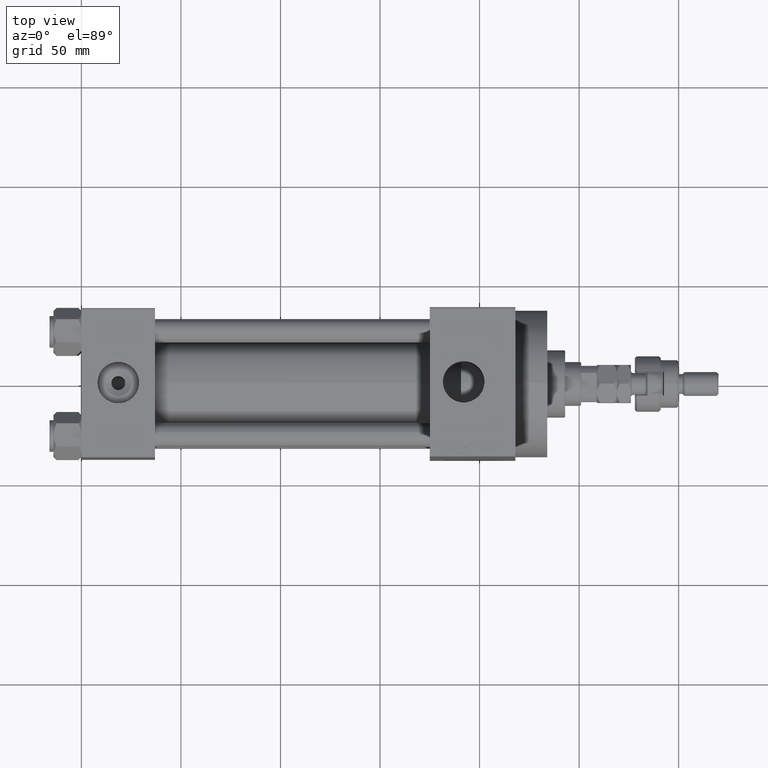
[diagram: clean part render]
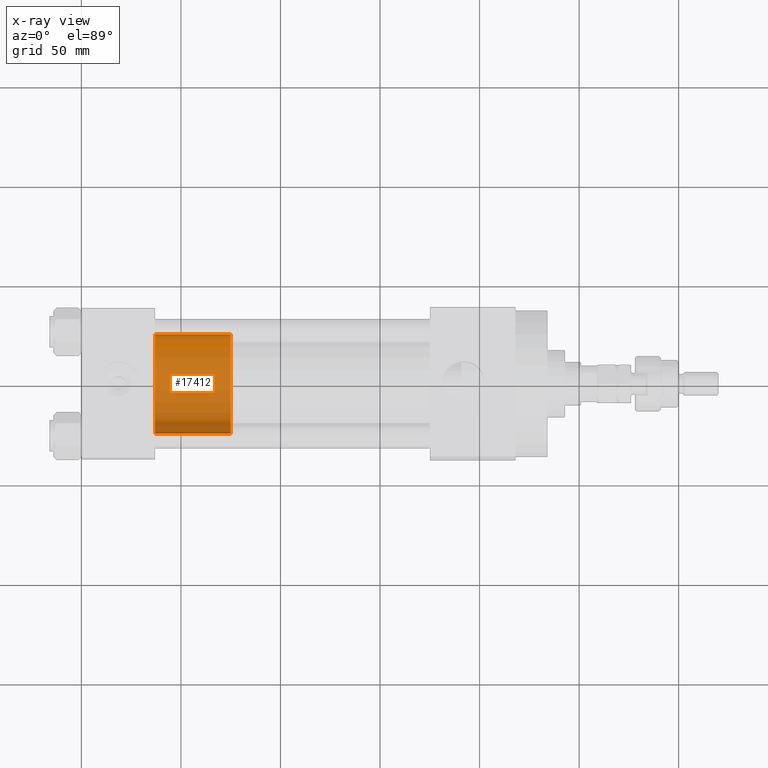
[diagram: x-ray — body ghosted, one internal face saturated and labeled with its STEP entity id]
A machine part, top view, then the same camera in x-ray: the body is ghosted and one INTERNAL B-rep face — a face not visible from any outside direction — is saturated and labeled: STEP entity #17412.
In plain terms, the highlighted cylindrical surface (partial cylindrical patch) has radius 25 mm, axis along (-1, 0, 0).
Its self-contained STEP definition (entity closure, byte-faithful):
#53 = AXIS2_PLACEMENT_3D ( 'NONE', #7747, #39234, #43512 ) ;
#1035 = CIRCLE ( 'NONE', #29429, 25.00000000000000000 ) ;
#1874 = EDGE_CURVE ( 'NONE', #42805, #6359, #1035, .T. ) ;
#2304 = ORIENTED_EDGE ( 'NONE', *, *, #1874, .F. ) ;
#2607 = CARTESIAN_POINT ( 'NONE',  ( 25.00000000000000000, 3.061616997868383043E-15, 38.00000000000000000 ) ) ;
#6182 = CARTESIAN_POINT ( 'NONE',  ( 0.000000000000000000, 0.000000000000000000, 0.000000000000000000 ) ) ;
#6359 = VERTEX_POINT ( 'NONE', #18870 ) ;
#6688 = ORIENTED_EDGE ( 'NONE', *, *, #36668, .T. ) ;
#7121 = VERTEX_POINT ( 'NONE', #26381 ) ;
#7747 = CARTESIAN_POINT ( 'NONE',  ( 0.000000000000000000, 0.000000000000000000, 38.00000000000000000 ) ) ;
#8326 = LINE ( 'NONE', #35498, #21020 ) ;
#9874 = DIRECTION ( 'NONE',  ( -0.000000000000000000, -0.000000000000000000, -1.000000000000000000 ) ) ;
#12556 = FACE_OUTER_BOUND ( 'NONE', #49221, .T. ) ;
#13918 = CARTESIAN_POINT ( 'NONE',  ( -25.00000000000000000, 0.000000000000000000, 0.000000000000000000 ) ) ;
#17412 = ADVANCED_FACE ( 'NONE', ( #12556 ), #28052, .T. ) ;
#17903 = DIRECTION ( 'NONE',  ( 0.000000000000000000, 0.000000000000000000, 1.000000000000000000 ) ) ;
#17984 = VECTOR ( 'NONE', #9874, 1000.000000000000000 ) ;
#18870 = CARTESIAN_POINT ( 'NONE',  ( -25.00000000000000000, 0.000000000000000000, 38.00000000000000000 ) ) ;
#19792 = EDGE_CURVE ( 'NONE', #6359, #31396, #29177, .T. ) ;
#21020 = VECTOR ( 'NONE', #39315, 1000.000000000000000 ) ;
#21411 = CARTESIAN_POINT ( 'NONE',  ( 0.000000000000000000, 0.000000000000000000, 38.00000000000000000 ) ) ;
#21862 = ORIENTED_EDGE ( 'NONE', *, *, #19792, .F. ) ;
#25728 = DIRECTION ( 'NONE',  ( 0.000000000000000000, 0.000000000000000000, 1.000000000000000000 ) ) ;
#26381 = CARTESIAN_POINT ( 'NONE',  ( 25.00000000000000000, 3.061616997868383043E-15, 0.000000000000000000 ) ) ;
#28052 = CYLINDRICAL_SURFACE ( 'NONE', #53, 25.00000000000000000 ) ;
#28931 = CARTESIAN_POINT ( 'NONE',  ( -25.00000000000000000, 0.000000000000000000, 38.00000000000000000 ) ) ;
#29010 = DIRECTION ( 'NONE',  ( 1.000000000000000000, 0.000000000000000000, 0.000000000000000000 ) ) ;
#29177 = LINE ( 'NONE', #28931, #17984 ) ;
#29429 = AXIS2_PLACEMENT_3D ( 'NONE', #21411, #25728, #29010 ) ;
#31396 = VERTEX_POINT ( 'NONE', #13918 ) ;
#35498 = CARTESIAN_POINT ( 'NONE',  ( 25.00000000000000000, 3.061616997868383043E-15, 38.00000000000000000 ) ) ;
#35883 = EDGE_CURVE ( 'NONE', #7121, #31396, #37190, .T. ) ;
#36668 = EDGE_CURVE ( 'NONE', #42805, #7121, #8326, .T. ) ;
#37190 = CIRCLE ( 'NONE', #38024, 25.00000000000000000 ) ;
#38024 = AXIS2_PLACEMENT_3D ( 'NONE', #6182, #17903, #45280 ) ;
#39234 = DIRECTION ( 'NONE',  ( -0.000000000000000000, -0.000000000000000000, -1.000000000000000000 ) ) ;
#39315 = DIRECTION ( 'NONE',  ( -0.000000000000000000, -0.000000000000000000, -1.000000000000000000 ) ) ;
#41390 = ORIENTED_EDGE ( 'NONE', *, *, #35883, .T. ) ;
#42805 = VERTEX_POINT ( 'NONE', #2607 ) ;
#43512 = DIRECTION ( 'NONE',  ( -1.000000000000000000, 0.000000000000000000, 0.000000000000000000 ) ) ;
#45280 = DIRECTION ( 'NONE',  ( 1.000000000000000000, 0.000000000000000000, 0.000000000000000000 ) ) ;
#49221 = EDGE_LOOP ( 'NONE', ( #2304, #6688, #41390, #21862 ) ) ;